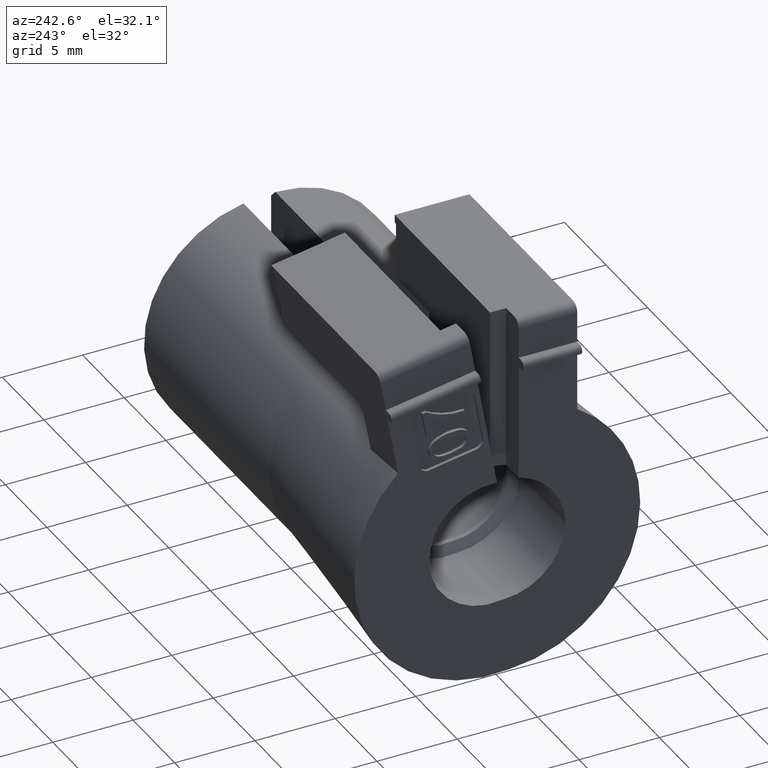
[diagram: clean part render]
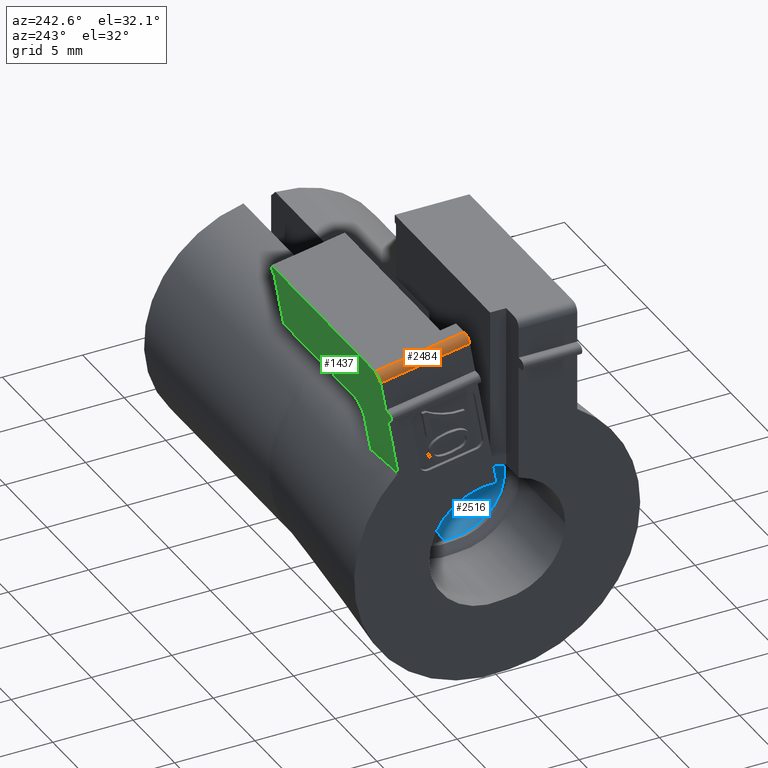
[diagram: same view with three faces highlighted in distinct colors, each labeled with its STEP entity id]
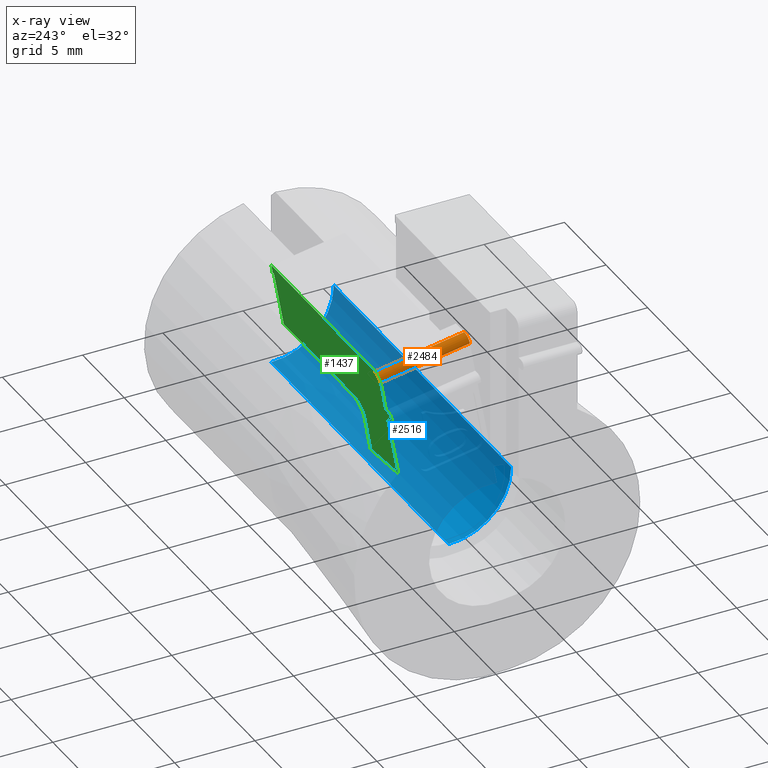
[diagram: x-ray of the same camera — body ghosted, the three highlighted faces saturated]
A machine part, auxiliary view with three faces highlighted in distinct colors.
The next image is the same camera in x-ray (body ghosted, the three faces saturated) — at least one of them is partly hidden behind the body in this view.
Their STEP definitions:

[orange] entity #2484 — the highlighted cylindrical surface (edge-blend (fillet) strip) has radius 0.5 mm, axis along (-0, -0.9848, 0.1736).
#1 = CARTESIAN_POINT ( 'NONE',  ( -0.03149606299212889815, 0.2992454465713134115, 0.4892988533961107334 ) ) ;
#65 = CARTESIAN_POINT ( 'NONE',  ( -0.01181102362204895784, 0.08360215067818313472, 0.5473112975033650462 ) ) ;
#135 = EDGE_CURVE ( 'NONE', #2973, #1592, #3359, .T. ) ;
#218 = CARTESIAN_POINT ( 'NONE',  ( -0.02937454534665159128, 0.3010297385410123927, 0.4994180760047526868 ) ) ;
#234 = CARTESIAN_POINT ( 'NONE',  ( -0.01181102362204858140, 0.3026637177852295468, 0.5086848327861144270 ) ) ;
#353 = CARTESIAN_POINT ( 'NONE',  ( -0.02208635155046037232, 0.08323375300515810371, 0.5452220104779480492 ) ) ;
#384 = FACE_OUTER_BOUND ( 'NONE', #2100, .T. ) ;
#568 = CARTESIAN_POINT ( 'NONE',  ( -0.03149606299212823896, 0.2992454465713136336, 0.4892988533961106223 ) ) ;
#836 = VERTEX_POINT ( 'NONE', #2351 ) ;
#913 = CARTESIAN_POINT ( 'NONE',  ( -0.03149606299212835692, 0.08107878077540196793, 0.5330005556495511776 ) ) ;
#1041 = CARTESIAN_POINT ( 'NONE',  ( -0.02208635155045983456, 0.3022953201122045575, 0.5065955457606977630 ) ) ;
#1078 = DIRECTION ( 'NONE',  ( 0.0000000000000000000, -0.9848077530122080203, 0.1736481776669306365 ) ) ;
#1095 = VECTOR ( 'NONE', #1078, 39.37007874015748854 ) ;
#1172 = AXIS2_PLACEMENT_3D ( 'NONE', #3559, #1440, #3311 ) ;
#1195 = EDGE_CURVE ( 'NONE', #2973, #2248, #2347, .T. ) ;
#1314 = CARTESIAN_POINT ( 'NONE',  ( -0.03149606299212823896, 0.2992454465713136336, 0.4892988533961106223 ) ) ;
#1434 = CARTESIAN_POINT ( 'NONE',  ( -0.02937454534665214292, 0.08196817143396602223, 0.5380445407220032505 ) ) ;
#1440 = DIRECTION ( 'NONE',  ( -2.470174999999999951E-15, -0.9848077530122080203, 0.1736481776669309973 ) ) ;
#1592 = VERTEX_POINT ( 'NONE', #568 ) ;
#1890 = CARTESIAN_POINT ( 'NONE',  ( -0.01181102362204895784, 0.08360215067818313472, 0.5473112975033650462 ) ) ;
#2100 = EDGE_LOOP ( 'NONE', ( #2803, #3133, #3077, #3083 ) ) ;
#2248 = VERTEX_POINT ( 'NONE', #1890 ) ;
#2347 = LINE ( 'NONE', #2613, #2491 ) ;
#2351 = CARTESIAN_POINT ( 'NONE',  ( -0.03149606299212887039, 0.08018387946426724922, 0.5279253181133610751 ) ) ;
#2385 = DIRECTION ( 'NONE',  ( 0.0000000000000000000, -0.9848077530122077983, 0.1736481776669309696 ) ) ;
#2484 = ADVANCED_FACE ( 'NONE', ( #384 ), #2775, .T. ) ;
#2491 = VECTOR ( 'NONE', #2385, 39.37007874015748854 ) ;
#2536 = CARTESIAN_POINT ( 'NONE',  ( -0.01696455487793793737, 0.08360215067818321799, 0.5473112975033653793 ) ) ;
#2583 = B_SPLINE_CURVE_WITH_KNOTS ( 'NONE', 3,
 ( #2804, #913, #1434, #353, #2536, #65 ),
 .UNSPECIFIED., .F., .F.,
 ( 4, 2, 4 ),
 ( 0.0000000000000000000, 0.5000000000000000000, 1.000000000000000000 ),
 .UNSPECIFIED. ) ;
#2613 = CARTESIAN_POINT ( 'NONE',  ( -0.01181102362204856059, 0.1223741094581913685, 0.5404747550755332197 ) ) ;
#2760 = LINE ( 'NONE', #1, #1095 ) ;
#2775 = CYLINDRICAL_SURFACE ( 'NONE', #1172, 0.01968503937007876070 ) ;
#2803 = ORIENTED_EDGE ( 'NONE', *, *, #135, .T. ) ;
#2804 = CARTESIAN_POINT ( 'NONE',  ( -0.03149606299212887039, 0.08018387946426724922, 0.5279253181133610751 ) ) ;
#2904 = CARTESIAN_POINT ( 'NONE',  ( -0.01696455487793739267, 0.3026637177852296579, 0.5086848327861147601 ) ) ;
#2973 = VERTEX_POINT ( 'NONE', #3546 ) ;
#2974 = EDGE_CURVE ( 'NONE', #1592, #836, #2760, .T. ) ;
#3077 = ORIENTED_EDGE ( 'NONE', *, *, #3479, .T. ) ;
#3083 = ORIENTED_EDGE ( 'NONE', *, *, #1195, .F. ) ;
#3133 = ORIENTED_EDGE ( 'NONE', *, *, #2974, .T. ) ;
#3311 = DIRECTION ( 'NONE',  ( 0.0000000000000000000, -0.1736481776669306920, -0.9848077530122079093 ) ) ;
#3359 = B_SPLINE_CURVE_WITH_KNOTS ( 'NONE', 3,
 ( #234, #2904, #1041, #218, #3480, #1314 ),
 .UNSPECIFIED., .F., .F.,
 ( 4, 2, 4 ),
 ( 0.0000000000000000000, 0.5000000000000000000, 1.000000000000000000 ),
 .UNSPECIFIED. ) ;
#3479 = EDGE_CURVE ( 'NONE', #836, #2248, #2583, .T. ) ;
#3480 = CARTESIAN_POINT ( 'NONE',  ( -0.03149606299212781568, 0.3001403478824484217, 0.4943740909323007249 ) ) ;
#3546 = CARTESIAN_POINT ( 'NONE',  ( -0.01181102362204858140, 0.3026637177852295468, 0.5086848327861144270 ) ) ;
#3559 = CARTESIAN_POINT ( 'NONE',  ( -0.01181102362204972632, 0.04330333452257602300, 0.5344283532498123046 ) ) ;

[blue] entity #2516 — the highlighted cylindrical surface (partial cylindrical patch) has radius 3.9 mm, axis along (-1, 0, 0).
#15 = EDGE_LOOP ( 'NONE', ( #2570, #1266, #2617, #2831 ) ) ;
#22 = AXIS2_PLACEMENT_3D ( 'NONE', #575, #2222, #2276 ) ;
#92 = VERTEX_POINT ( 'NONE', #1060 ) ;
#113 = CARTESIAN_POINT ( 'NONE',  ( 1.062992125984249192, -2.638078016633811031E-15, -0.1535433070866141780 ) ) ;
#207 = CARTESIAN_POINT ( 'NONE',  ( 1.062992125984249192, -2.666283464566929342E-15, 0.0000000000000000000 ) ) ;
#407 = AXIS2_PLACEMENT_3D ( 'NONE', #2480, #519, #2748 ) ;
#458 = VERTEX_POINT ( 'NONE', #1533 ) ;
#519 = DIRECTION ( 'NONE',  ( 1.000000000000000000, -2.508281999999999843E-15, -0.0000000000000000000 ) ) ;
#575 = CARTESIAN_POINT ( 'NONE',  ( 1.062992125984249192, -2.666283464566929342E-15, 0.0000000000000000000 ) ) ;
#1060 = CARTESIAN_POINT ( 'NONE',  ( 1.062992125984248748, -0.1535433070866168426, 0.0000000000000000000 ) ) ;
#1064 = DIRECTION ( 'NONE',  ( -2.668805347656626481E-15, -1.000000000000000000, 0.0000000000000000000 ) ) ;
#1093 = FACE_OUTER_BOUND ( 'NONE', #15, .T. ) ;
#1112 = AXIS2_PLACEMENT_3D ( 'NONE', #207, #3191, #1064 ) ;
#1120 = CARTESIAN_POINT ( 'NONE',  ( 0.2242681166010166705, 3.002504090303491111E-14, -0.1535433070844512138 ) ) ;
#1206 = DIRECTION ( 'NONE',  ( 1.000000000000000000, -2.508281999999999843E-15, -0.0000000000000000000 ) ) ;
#1266 = ORIENTED_EDGE ( 'NONE', *, *, #2869, .F. ) ;
#1533 = CARTESIAN_POINT ( 'NONE',  ( 0.2242681165950274613, -0.1535433070866147331, 0.0000000000000000000 ) ) ;
#1699 = CIRCLE ( 'NONE', #1112, 0.1535433070866141780 ) ;
#1806 = CARTESIAN_POINT ( 'NONE',  ( 1.062992125984248748, -0.1535433070866168426, 0.0000000000000000000 ) ) ;
#1965 = CIRCLE ( 'NONE', #407, 0.1535433070866141780 ) ;
#2202 = CYLINDRICAL_SURFACE ( 'NONE', #22, 0.1535433070866141780 ) ;
#2214 = VECTOR ( 'NONE', #1206, 39.37007874015748143 ) ;
#2222 = DIRECTION ( 'NONE',  ( -1.000000000000000000, 2.508281999999999843E-15, 0.0000000000000000000 ) ) ;
#2276 = DIRECTION ( 'NONE',  ( -2.668805347656626481E-15, -1.000000000000000000, 0.0000000000000000000 ) ) ;
#2322 = LINE ( 'NONE', #1806, #3512 ) ;
#2480 = CARTESIAN_POINT ( 'NONE',  ( 0.2242681165950278777, -5.625271288481141965E-16, 0.0000000000000000000 ) ) ;
#2516 = ADVANCED_FACE ( 'NONE', ( #1093 ), #2202, .F. ) ;
#2548 = DIRECTION ( 'NONE',  ( -1.000000000000000000, 2.508281999999999843E-15, 0.0000000000000000000 ) ) ;
#2570 = ORIENTED_EDGE ( 'NONE', *, *, #3138, .F. ) ;
#2580 = LINE ( 'NONE', #113, #2214 ) ;
#2617 = ORIENTED_EDGE ( 'NONE', *, *, #2744, .F. ) ;
#2744 = EDGE_CURVE ( 'NONE', #3056, #3370, #2580, .T. ) ;
#2748 = DIRECTION ( 'NONE',  ( -2.446404902018573946E-15, -1.000000000000000000, 0.0000000000000000000 ) ) ;
#2831 = ORIENTED_EDGE ( 'NONE', *, *, #3332, .F. ) ;
#2869 = EDGE_CURVE ( 'NONE', #3370, #92, #1699, .T. ) ;
#3056 = VERTEX_POINT ( 'NONE', #1120 ) ;
#3105 = CARTESIAN_POINT ( 'NONE',  ( 1.062992125984249192, -2.233567809320918284E-15, -0.1535433070866141780 ) ) ;
#3138 = EDGE_CURVE ( 'NONE', #92, #458, #2322, .T. ) ;
#3191 = DIRECTION ( 'NONE',  ( -1.000000000000000000, 2.508281999999999843E-15, 0.0000000000000000000 ) ) ;
#3332 = EDGE_CURVE ( 'NONE', #458, #3056, #1965, .T. ) ;
#3370 = VERTEX_POINT ( 'NONE', #3105 ) ;
#3512 = VECTOR ( 'NONE', #2548, 39.37007874015748143 ) ;

[green] entity #1437 — the highlighted planar face has unit normal (0, 0.9848, -0.1736).
#10 = DIRECTION ( 'NONE',  ( -1.000000000000000000, 2.224247398643251579E-17, -3.921948281514235737E-18 ) ) ;
#12 = VECTOR ( 'NONE', #2485, 39.37007874015748143 ) ;
#72 = LINE ( 'NONE', #2737, #485 ) ;
#102 = DIRECTION ( 'NONE',  ( 1.000000000000000000, -1.876377958043119658E-17, -1.064146820018130589E-16 ) ) ;
#135 = EDGE_CURVE ( 'NONE', #2973, #1592, #3359, .T. ) ;
#218 = CARTESIAN_POINT ( 'NONE',  ( -0.02937454534665159128, 0.3010297385410123927, 0.4994180760047526868 ) ) ;
#227 = CARTESIAN_POINT ( 'NONE',  ( 0.4728253191847920367, 0.2989140628795674548, 0.4874194830897924380 ) ) ;
#234 = CARTESIAN_POINT ( 'NONE',  ( -0.01181102362204858140, 0.3026637177852295468, 0.5086848327861144270 ) ) ;
#271 = DIRECTION ( 'NONE',  ( -0.0000000000000000000, -0.1736481776669309696, -0.9848077530122077983 ) ) ;
#274 = CARTESIAN_POINT ( 'NONE',  ( -2.118635826771653808E-15, 0.2862560159584316977, 0.4156321317140941884 ) ) ;
#292 = CARTESIAN_POINT ( 'NONE',  ( -0.03149606299212879407, 0.2821540905017327905, 0.3923689564460891011 ) ) ;
#345 = VERTEX_POINT ( 'NONE', #360 ) ;
#348 = EDGE_CURVE ( 'NONE', #1539, #2992, #1187, .T. ) ;
#354 = CIRCLE ( 'NONE', #583, 0.01181102362204721618 ) ;
#359 = VERTEX_POINT ( 'NONE', #2542 ) ;
#360 = CARTESIAN_POINT ( 'NONE',  ( 0.4724409448818852608, 0.2753175480739018521, 0.3535969976660812142 ) ) ;
#361 = VECTOR ( 'NONE', #1369, 39.37007874015748143 ) ;
#370 = VECTOR ( 'NONE', #10, 39.37007874015748143 ) ;
#376 = DIRECTION ( 'NONE',  ( 0.0000000000000000000, 0.1736481776669298593, 0.9848077530122082424 ) ) ;
#390 = CARTESIAN_POINT ( 'NONE',  ( -0.03149606299482801686, 0.2561667989753390051, 0.2449877024713418561 ) ) ;
#416 = CIRCLE ( 'NONE', #930, 0.03937007874015748671 ) ;
#485 = VECTOR ( 'NONE', #271, 39.37007874015748854 ) ;
#508 = CARTESIAN_POINT ( 'NONE',  ( -3.047844488188976345E-15, 0.2821540905017326795, 0.3923689564460890455 ) ) ;
#517 = EDGE_CURVE ( 'NONE', #1835, #1022, #1036, .T. ) ;
#524 = EDGE_CURVE ( 'NONE', #1874, #3264, #354, .T. ) ;
#525 = VERTEX_POINT ( 'NONE', #3254 ) ;
#528 = ORIENTED_EDGE ( 'NONE', *, *, #135, .F. ) ;
#568 = CARTESIAN_POINT ( 'NONE',  ( -0.03149606299212823896, 0.2992454465713136336, 0.4892988533961106223 ) ) ;
#577 = CARTESIAN_POINT ( 'NONE',  ( 0.1417322834645641794, 0.2684810056460699146, 0.3148250388860732163 ) ) ;
#583 = AXIS2_PLACEMENT_3D ( 'NONE', #3452, #2917, #987 ) ;
#631 = CARTESIAN_POINT ( 'NONE',  ( -0.03149606299212889815, 0.2561667989806182266, 0.2449877025012815734 ) ) ;
#675 = CARTESIAN_POINT ( 'NONE',  ( -0.02099718095212104590, 0.2559769154382098844, 0.2439108194014697750 ) ) ;
#676 = CARTESIAN_POINT ( 'NONE',  ( 0.4783464566929107042, 0.2992454465713133005, 0.4892988533961090680 ) ) ;
#690 = VERTEX_POINT ( 'NONE', #817 ) ;
#714 = CARTESIAN_POINT ( 'NONE',  ( -0.03149606299482801686, 0.2561667989753390051, 0.2449877024713418561 ) ) ;
#809 = ORIENTED_EDGE ( 'NONE', *, *, #1428, .T. ) ;
#817 = CARTESIAN_POINT ( 'NONE',  ( 0.1417322834645642071, 0.2753175480739017966, 0.3535969976660813252 ) ) ;
#874 = VECTOR ( 'NONE', #102, 39.37007874015748143 ) ;
#885 = VECTOR ( 'NONE', #376, 39.37007874015748143 ) ;
#898 = LINE ( 'NONE', #2571, #874 ) ;
#928 = LINE ( 'NONE', #676, #885 ) ;
#930 = AXIS2_PLACEMENT_3D ( 'NONE', #577, #2224, #3313 ) ;
#949 = DIRECTION ( 'NONE',  ( 0.0000000000000000000, 0.1736481776669309696, 0.9848077530122077983 ) ) ;
#981 = EDGE_CURVE ( 'NONE', #2541, #3264, #2739, .T. ) ;
#983 = VECTOR ( 'NONE', #949, 39.37007874015748854 ) ;
#987 = DIRECTION ( 'NONE',  ( 0.0000000000000000000, 0.1736481776669327182, 0.9848077530122076872 ) ) ;
#1001 = CARTESIAN_POINT ( 'NONE',  ( 0.1023622047238718497, 0.2537273873260268431, 0.2311531115340348941 ) ) ;
#1013 = EDGE_CURVE ( 'NONE', #690, #1835, #416, .T. ) ;
#1022 = VERTEX_POINT ( 'NONE', #1682 ) ;
#1036 = LINE ( 'NONE', #2971, #1747 ) ;
#1041 = CARTESIAN_POINT ( 'NONE',  ( -0.02208635155045983456, 0.3022953201122045575, 0.5065955457606977630 ) ) ;
#1085 = CARTESIAN_POINT ( 'NONE',  ( 0.4743628163964112021, 0.2991763548796109173, 0.4889070149410700838 ) ) ;
#1187 = LINE ( 'NONE', #631, #2140 ) ;
#1241 = ORIENTED_EDGE ( 'NONE', *, *, #348, .T. ) ;
#1285 = ORIENTED_EDGE ( 'NONE', *, *, #2022, .T. ) ;
#1301 = ORIENTED_EDGE ( 'NONE', *, *, #3532, .F. ) ;
#1314 = CARTESIAN_POINT ( 'NONE',  ( -0.03149606299212823896, 0.2992454465713136336, 0.4892988533961106223 ) ) ;
#1343 = CARTESIAN_POINT ( 'NONE',  ( 0.4724409448818872037, 0.2985617923285301401, 0.4854216575181083959 ) ) ;
#1369 = DIRECTION ( 'NONE',  ( -1.000000000000000000, 1.876377958043119658E-17, 1.064146820018130589E-16 ) ) ;
#1380 = EDGE_CURVE ( 'NONE', #1874, #2992, #1661, .T. ) ;
#1423 = CARTESIAN_POINT ( 'NONE',  ( -0.03149606299212853733, 0.2862560159584324193, 0.4156321317140940219 ) ) ;
#1428 = EDGE_CURVE ( 'NONE', #2973, #359, #2807, .T. ) ;
#1436 = DIRECTION ( 'NONE',  ( 1.000000000000000000, -2.224247398643251579E-17, 3.921948281514235737E-18 ) ) ;
#1437 = ADVANCED_FACE ( 'NONE', ( #2771 ), #2032, .T. ) ;
#1451 = ORIENTED_EDGE ( 'NONE', *, *, #2588, .T. ) ;
#1539 = VERTEX_POINT ( 'NONE', #390 ) ;
#1555 = B_SPLINE_CURVE_WITH_KNOTS ( 'NONE', 3,
 ( #714, #675, #2081, #2063, #3445, #3392, #1001 ),
 .UNSPECIFIED., .F., .F.,
 ( 4, 3, 4 ),
 ( -0.0008043422325121787723, 6.145691594516833334E-15, 0.002614330102261178471 ),
 .UNSPECIFIED. ) ;
#1571 = VERTEX_POINT ( 'NONE', #2499 ) ;
#1592 = VERTEX_POINT ( 'NONE', #568 ) ;
#1661 = LINE ( 'NONE', #508, #12 ) ;
#1682 = CARTESIAN_POINT ( 'NONE',  ( 0.1023622047238718497, 0.2537273873260268431, 0.2311531115340348941 ) ) ;
#1707 = ORIENTED_EDGE ( 'NONE', *, *, #1013, .T. ) ;
#1747 = VECTOR ( 'NONE', #2699, 39.37007874015748854 ) ;
#1809 = ORIENTED_EDGE ( 'NONE', *, *, #517, .T. ) ;
#1835 = VERTEX_POINT ( 'NONE', #2951 ) ;
#1874 = VERTEX_POINT ( 'NONE', #2969 ) ;
#1910 = CARTESIAN_POINT ( 'NONE',  ( 0.2139400209205640779, 0.2753175480739017966, 0.3535969976660813252 ) ) ;
#1982 = CARTESIAN_POINT ( 'NONE',  ( 0.2139400209205640779, 0.3026637177852295468, 0.5086848327861143160 ) ) ;
#1985 = ORIENTED_EDGE ( 'NONE', *, *, #3373, .F. ) ;
#2022 = EDGE_CURVE ( 'NONE', #345, #690, #2250, .T. ) ;
#2032 = PLANE ( 'NONE',  #2383 ) ;
#2063 = CARTESIAN_POINT ( 'NONE',  ( -2.874228060697331970E-12, 0.2555961769654212512, 0.2417515442486624921 ) ) ;
#2066 = CARTESIAN_POINT ( 'NONE',  ( -0.03149606299212811406, 0.2897379713569063764, 0.4353792820621769644 ) ) ;
#2081 = CARTESIAN_POINT ( 'NONE',  ( -0.01049849067836212090, 0.2557867118771957049, 0.2428321214298113095 ) ) ;
#2110 = EDGE_CURVE ( 'NONE', #1571, #359, #928, .T. ) ;
#2140 = VECTOR ( 'NONE', #2828, 39.37007874015748143 ) ;
#2157 = ORIENTED_EDGE ( 'NONE', *, *, #1380, .F. ) ;
#2224 = DIRECTION ( 'NONE',  ( -2.258560000000000098E-17, -0.9848077530122080203, 0.1736481776669309973 ) ) ;
#2250 = LINE ( 'NONE', #1910, #370 ) ;
#2268 = VERTEX_POINT ( 'NONE', #3195 ) ;
#2316 = ORIENTED_EDGE ( 'NONE', *, *, #3276, .T. ) ;
#2342 = ORIENTED_EDGE ( 'NONE', *, *, #981, .F. ) ;
#2378 = VECTOR ( 'NONE', #1436, 39.37007874015748143 ) ;
#2383 = AXIS2_PLACEMENT_3D ( 'NONE', #2506, #3075, #2521 ) ;
#2384 = B_SPLINE_CURVE_WITH_KNOTS ( 'NONE', 3,
 ( #2712, #2968, #1085, #227, #2412, #1343 ),
 .UNSPECIFIED., .F., .F.,
 ( 4, 2, 4 ),
 ( 0.0000000000000000000, 0.5000000000000000000, 1.000000000000000000 ),
 .UNSPECIFIED. ) ;
#2412 = CARTESIAN_POINT ( 'NONE',  ( 0.4724409448818873147, 0.2987529240292144395, 0.4865056192573514182 ) ) ;
#2485 = DIRECTION ( 'NONE',  ( 1.000000000000000000, -1.876377958043119658E-17, -1.064146820018130589E-16 ) ) ;
#2499 = CARTESIAN_POINT ( 'NONE',  ( 0.4783464566929107042, 0.2992454465713133005, 0.4892988533961091235 ) ) ;
#2506 = CARTESIAN_POINT ( 'NONE',  ( 0.2139400209205640779, 0.2897379713569063764, 0.4353792820621769644 ) ) ;
#2521 = DIRECTION ( 'NONE',  ( 0.0000000000000000000, 0.1736481776669309696, 0.9848077530122077983 ) ) ;
#2523 = EDGE_LOOP ( 'NONE', ( #2342, #3160, #528, #809, #2886, #1985, #2316, #1451, #1285, #1707, #1809, #1301, #1241, #2157, #2632 ) ) ;
#2541 = VERTEX_POINT ( 'NONE', #1423 ) ;
#2542 = CARTESIAN_POINT ( 'NONE',  ( 0.4783464566929107598, 0.3026637177852286587, 0.5086848327861096530 ) ) ;
#2571 = CARTESIAN_POINT ( 'NONE',  ( 0.4724409448818871482, 0.2992454465713133005, 0.4892988533961090680 ) ) ;
#2588 = EDGE_CURVE ( 'NONE', #2268, #345, #72, .T. ) ;
#2632 = ORIENTED_EDGE ( 'NONE', *, *, #524, .T. ) ;
#2699 = DIRECTION ( 'NONE',  ( -0.0000000000000000000, -0.1736481776669309696, -0.9848077530122077983 ) ) ;
#2712 = CARTESIAN_POINT ( 'NONE',  ( 0.4763779527559028892, 0.2992454465713133005, 0.4892988533961090125 ) ) ;
#2737 = CARTESIAN_POINT ( 'NONE',  ( 0.4724409448818872592, 0.2897379713569063764, 0.4353792820621769644 ) ) ;
#2739 = LINE ( 'NONE', #274, #361 ) ;
#2771 = FACE_OUTER_BOUND ( 'NONE', #2523, .T. ) ;
#2807 = LINE ( 'NONE', #1982, #2378 ) ;
#2828 = DIRECTION ( 'NONE',  ( 0.0000000000000000000, 0.1736481776669226429, 0.9848077530122094636 ) ) ;
#2886 = ORIENTED_EDGE ( 'NONE', *, *, #2110, .F. ) ;
#2904 = CARTESIAN_POINT ( 'NONE',  ( -0.01696455487793739267, 0.3026637177852296579, 0.5086848327861147601 ) ) ;
#2917 = DIRECTION ( 'NONE',  ( 2.529985999999999850E-15, 0.9848077530122080203, -0.1736481776669309973 ) ) ;
#2951 = CARTESIAN_POINT ( 'NONE',  ( 0.1023622047244066857, 0.2684810056460699146, 0.3148250388860732718 ) ) ;
#2968 = CARTESIAN_POINT ( 'NONE',  ( 0.4753045285755167493, 0.2992454465713134115, 0.4892988533961090125 ) ) ;
#2969 = CARTESIAN_POINT ( 'NONE',  ( -0.04330708661417564942, 0.2821540905017326795, 0.3923689564460890455 ) ) ;
#2971 = CARTESIAN_POINT ( 'NONE',  ( 0.1023622047244066580, 0.2897379713569063764, 0.4353792820621769644 ) ) ;
#2973 = VERTEX_POINT ( 'NONE', #3546 ) ;
#2992 = VERTEX_POINT ( 'NONE', #292 ) ;
#2999 = CARTESIAN_POINT ( 'NONE',  ( -0.04330708661417537186, 0.2862560159584316977, 0.4156321317140941329 ) ) ;
#3075 = DIRECTION ( 'NONE',  ( 2.258559999999999790E-17, 0.9848077530122080203, -0.1736481776669309973 ) ) ;
#3141 = EDGE_CURVE ( 'NONE', #2541, #1592, #3471, .T. ) ;
#3160 = ORIENTED_EDGE ( 'NONE', *, *, #3141, .T. ) ;
#3195 = CARTESIAN_POINT ( 'NONE',  ( 0.4724409448818872037, 0.2985617923285301401, 0.4854216575181083959 ) ) ;
#3254 = CARTESIAN_POINT ( 'NONE',  ( 0.4763779527559028892, 0.2992454465713133005, 0.4892988533961090125 ) ) ;
#3264 = VERTEX_POINT ( 'NONE', #2999 ) ;
#3276 = EDGE_CURVE ( 'NONE', #525, #2268, #2384, .T. ) ;
#3313 = DIRECTION ( 'NONE',  ( 0.0000000000000000000, -0.1736481776669308308, -0.9848077530122079093 ) ) ;
#3359 = B_SPLINE_CURVE_WITH_KNOTS ( 'NONE', 3,
 ( #234, #2904, #1041, #218, #3480, #1314 ),
 .UNSPECIFIED., .F., .F.,
 ( 4, 2, 4 ),
 ( 0.0000000000000000000, 0.5000000000000000000, 1.000000000000000000 ),
 .UNSPECIFIED. ) ;
#3373 = EDGE_CURVE ( 'NONE', #525, #1571, #898, .T. ) ;
#3392 = CARTESIAN_POINT ( 'NONE',  ( 0.06824376824661870788, 0.2543541018020432642, 0.2347073859479577862 ) ) ;
#3445 = CARTESIAN_POINT ( 'NONE',  ( 0.03412293219606513800, 0.2549768870048947922, 0.2382393763544571330 ) ) ;
#3452 = CARTESIAN_POINT ( 'NONE',  ( -0.04330708661417537186, 0.2842050532300821608, 0.4040005440800916725 ) ) ;
#3471 = LINE ( 'NONE', #2066, #983 ) ;
#3480 = CARTESIAN_POINT ( 'NONE',  ( -0.03149606299212781568, 0.3001403478824484217, 0.4943740909323007249 ) ) ;
#3532 = EDGE_CURVE ( 'NONE', #1539, #1022, #1555, .T. ) ;
#3546 = CARTESIAN_POINT ( 'NONE',  ( -0.01181102362204858140, 0.3026637177852295468, 0.5086848327861144270 ) ) ;